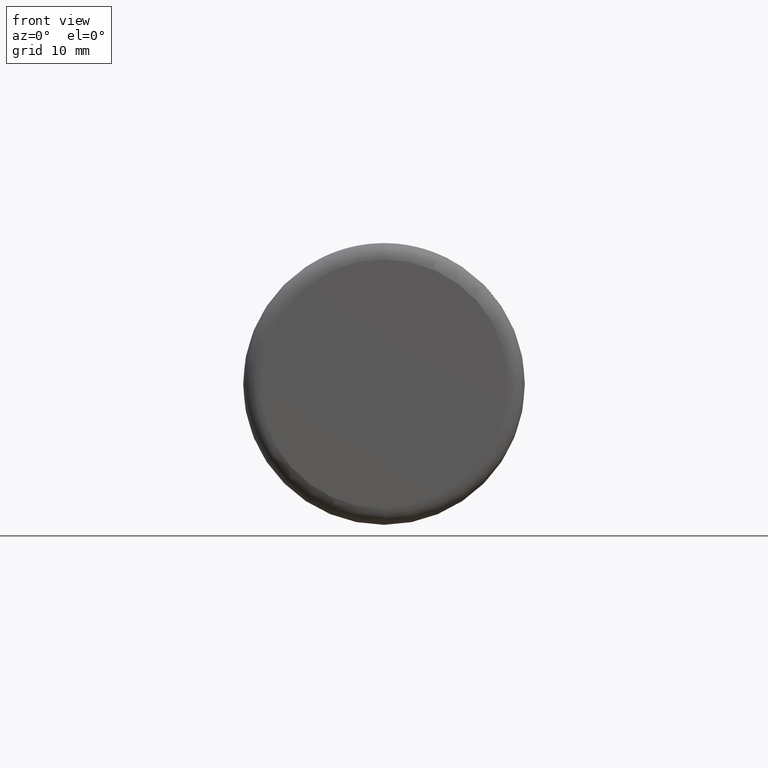
[diagram: clean part render]
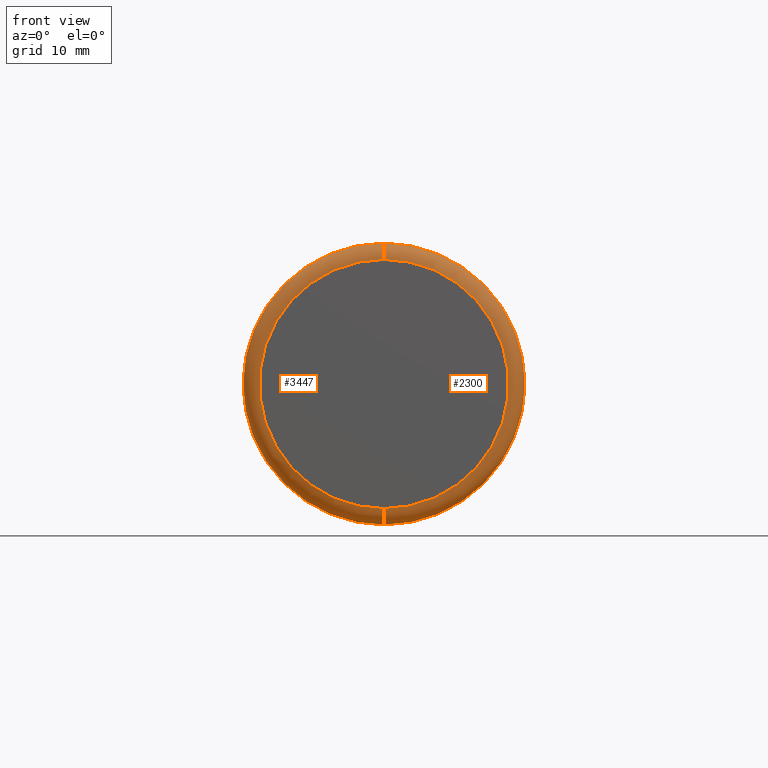
[diagram: same view with one multi-face feature highlighted, each face labeled with its STEP entity id]
A machine part, front view. The highlighted faces form ONE feature: a constant-radius fillet chain: 2 tangent blend faces with common blend radius 2.3616 mm. The faces share edges in the B-rep.
Their STEP definitions:
[1] entity #2300 (Torus):
#214 = AXIS2_PLACEMENT_3D ( 'NONE', #1311, #4252, #2015 ) ;
#237 = ORIENTED_EDGE ( 'NONE', *, *, #2644, .F. ) ;
#352 = VERTEX_POINT ( 'NONE', #1563 ) ;
#516 = ORIENTED_EDGE ( 'NONE', *, *, #3492, .F. ) ;
#536 = CARTESIAN_POINT ( 'NONE',  ( 2.221313350165435200E-015, 2.361600000000005500, -18.13839999999999700 ) ) ;
#820 = CIRCLE ( 'NONE', #3004, 2.361599999999998400 ) ;
#1001 = CIRCLE ( 'NONE', #214, 2.361599999999998400 ) ;
#1093 = DIRECTION ( 'NONE',  ( 0.0000000000000000000, 0.0000000000000000000, 1.000000000000000000 ) ) ;
#1240 = DIRECTION ( 'NONE',  ( 0.0000000000000000000, 0.0000000000000000000, 1.000000000000000000 ) ) ;
#1311 = CARTESIAN_POINT ( 'NONE',  ( 0.0000000000000000000, 2.361600000000005500, 18.13839999999999700 ) ) ;
#1554 = EDGE_CURVE ( 'NONE', #3426, #4584, #3434, .T. ) ;
#1563 = CARTESIAN_POINT ( 'NONE',  ( 2.365919644208754400E-015, 0.0000000000000000000, -18.13839999999999700 ) ) ;
#1633 = DIRECTION ( 'NONE',  ( -0.0000000000000000000, -1.000000000000000000, -0.0000000000000000000 ) ) ;
#1655 = VERTEX_POINT ( 'NONE', #4749 ) ;
#1981 = CARTESIAN_POINT ( 'NONE',  ( 0.0000000000000000000, 2.361600000000005500, 20.49999999999999600 ) ) ;
#2013 = FACE_OUTER_BOUND ( 'NONE', #2918, .T. ) ;
#2015 = DIRECTION ( 'NONE',  ( 0.0000000000000000000, 0.0000000000000000000, 1.000000000000000000 ) ) ;
#2052 = DIRECTION ( 'NONE',  ( 1.224646799147353700E-016, 0.0000000000000000000, -1.000000000000000000 ) ) ;
#2169 = AXIS2_PLACEMENT_3D ( 'NONE', #3093, #1633, #3497 ) ;
#2300 = ADVANCED_FACE ( 'NONE', ( #2013 ), #4199, .T. ) ;
#2644 = EDGE_CURVE ( 'NONE', #352, #1655, #4673, .T. ) ;
#2649 = CARTESIAN_POINT ( 'NONE',  ( 0.0000000000000000000, 2.361600000000005500, 0.0000000000000000000 ) ) ;
#2712 = AXIS2_PLACEMENT_3D ( 'NONE', #4564, #3476, #1240 ) ;
#2918 = EDGE_LOOP ( 'NONE', ( #237, #3182, #4691, #516 ) ) ;
#3004 = AXIS2_PLACEMENT_3D ( 'NONE', #536, #3522, #2052 ) ;
#3093 = CARTESIAN_POINT ( 'NONE',  ( 0.0000000000000000000, 0.0000000000000000000, 0.0000000000000000000 ) ) ;
#3182 = ORIENTED_EDGE ( 'NONE', *, *, #3824, .T. ) ;
#3338 = DIRECTION ( 'NONE',  ( 0.0000000000000000000, 1.000000000000000000, 0.0000000000000000000 ) ) ;
#3426 = VERTEX_POINT ( 'NONE', #1981 ) ;
#3434 = CIRCLE ( 'NONE', #2712, 20.50000000000000000 ) ;
#3476 = DIRECTION ( 'NONE',  ( 0.0000000000000000000, 1.000000000000000000, 0.0000000000000000000 ) ) ;
#3491 = AXIS2_PLACEMENT_3D ( 'NONE', #2649, #3338, #1093 ) ;
#3492 = EDGE_CURVE ( 'NONE', #1655, #3426, #1001, .T. ) ;
#3497 = DIRECTION ( 'NONE',  ( 0.0000000000000000000, 0.0000000000000000000, 1.000000000000000000 ) ) ;
#3522 = DIRECTION ( 'NONE',  ( 1.000000000000000000, -0.0000000000000000000, 1.224646799147353200E-016 ) ) ;
#3560 = CARTESIAN_POINT ( 'NONE',  ( 2.510525938252074100E-015, 2.361600000000005500, -20.49999999999999600 ) ) ;
#3824 = EDGE_CURVE ( 'NONE', #352, #4584, #820, .T. ) ;
#4199 = TOROIDAL_SURFACE ( 'NONE', #3491, 18.13839999999999700, 2.361600000000000100 ) ;
#4252 = DIRECTION ( 'NONE',  ( -1.000000000000000000, 0.0000000000000000000, 0.0000000000000000000 ) ) ;
#4564 = CARTESIAN_POINT ( 'NONE',  ( 0.0000000000000000000, 2.361600000000005500, 0.0000000000000000000 ) ) ;
#4584 = VERTEX_POINT ( 'NONE', #3560 ) ;
#4673 = CIRCLE ( 'NONE', #2169, 18.13839999999999700 ) ;
#4691 = ORIENTED_EDGE ( 'NONE', *, *, #1554, .F. ) ;
#4749 = CARTESIAN_POINT ( 'NONE',  ( 0.0000000000000000000, 0.0000000000000000000, 18.13839999999999700 ) ) ;
[2] entity #3447 (Torus):
#116 = DIRECTION ( 'NONE',  ( 0.0000000000000000000, 0.0000000000000000000, 1.000000000000000000 ) ) ;
#214 = AXIS2_PLACEMENT_3D ( 'NONE', #1311, #4252, #2015 ) ;
#352 = VERTEX_POINT ( 'NONE', #1563 ) ;
#457 = ORIENTED_EDGE ( 'NONE', *, *, #2874, .F. ) ;
#536 = CARTESIAN_POINT ( 'NONE',  ( 2.221313350165435200E-015, 2.361600000000005500, -18.13839999999999700 ) ) ;
#563 = AXIS2_PLACEMENT_3D ( 'NONE', #1802, #1814, #2207 ) ;
#820 = CIRCLE ( 'NONE', #3004, 2.361599999999998400 ) ;
#1001 = CIRCLE ( 'NONE', #214, 2.361599999999998400 ) ;
#1006 = TOROIDAL_SURFACE ( 'NONE', #3190, 18.13839999999999700, 2.361600000000000100 ) ;
#1104 = ORIENTED_EDGE ( 'NONE', *, *, #3492, .T. ) ;
#1311 = CARTESIAN_POINT ( 'NONE',  ( 0.0000000000000000000, 2.361600000000005500, 18.13839999999999700 ) ) ;
#1563 = CARTESIAN_POINT ( 'NONE',  ( 2.365919644208754400E-015, 0.0000000000000000000, -18.13839999999999700 ) ) ;
#1655 = VERTEX_POINT ( 'NONE', #4749 ) ;
#1797 = EDGE_LOOP ( 'NONE', ( #3079, #3318, #1104, #457 ) ) ;
#1802 = CARTESIAN_POINT ( 'NONE',  ( 0.0000000000000000000, 2.361600000000005500, 0.0000000000000000000 ) ) ;
#1814 = DIRECTION ( 'NONE',  ( 0.0000000000000000000, 1.000000000000000000, 0.0000000000000000000 ) ) ;
#1981 = CARTESIAN_POINT ( 'NONE',  ( 0.0000000000000000000, 2.361600000000005500, 20.49999999999999600 ) ) ;
#2015 = DIRECTION ( 'NONE',  ( 0.0000000000000000000, 0.0000000000000000000, 1.000000000000000000 ) ) ;
#2052 = DIRECTION ( 'NONE',  ( 1.224646799147353700E-016, 0.0000000000000000000, -1.000000000000000000 ) ) ;
#2207 = DIRECTION ( 'NONE',  ( 0.0000000000000000000, 0.0000000000000000000, 1.000000000000000000 ) ) ;
#2400 = DIRECTION ( 'NONE',  ( -0.0000000000000000000, -1.000000000000000000, -0.0000000000000000000 ) ) ;
#2562 = AXIS2_PLACEMENT_3D ( 'NONE', #4603, #2400, #3160 ) ;
#2815 = FACE_OUTER_BOUND ( 'NONE', #1797, .T. ) ;
#2874 = EDGE_CURVE ( 'NONE', #4584, #3426, #4380, .T. ) ;
#3004 = AXIS2_PLACEMENT_3D ( 'NONE', #536, #3522, #2052 ) ;
#3079 = ORIENTED_EDGE ( 'NONE', *, *, #3824, .F. ) ;
#3160 = DIRECTION ( 'NONE',  ( 0.0000000000000000000, 0.0000000000000000000, 1.000000000000000000 ) ) ;
#3190 = AXIS2_PLACEMENT_3D ( 'NONE', #3424, #3789, #116 ) ;
#3318 = ORIENTED_EDGE ( 'NONE', *, *, #4567, .F. ) ;
#3424 = CARTESIAN_POINT ( 'NONE',  ( 0.0000000000000000000, 2.361600000000005500, 0.0000000000000000000 ) ) ;
#3426 = VERTEX_POINT ( 'NONE', #1981 ) ;
#3447 = ADVANCED_FACE ( 'NONE', ( #2815 ), #1006, .T. ) ;
#3492 = EDGE_CURVE ( 'NONE', #1655, #3426, #1001, .T. ) ;
#3522 = DIRECTION ( 'NONE',  ( 1.000000000000000000, -0.0000000000000000000, 1.224646799147353200E-016 ) ) ;
#3560 = CARTESIAN_POINT ( 'NONE',  ( 2.510525938252074100E-015, 2.361600000000005500, -20.49999999999999600 ) ) ;
#3789 = DIRECTION ( 'NONE',  ( 0.0000000000000000000, 1.000000000000000000, 0.0000000000000000000 ) ) ;
#3824 = EDGE_CURVE ( 'NONE', #352, #4584, #820, .T. ) ;
#4252 = DIRECTION ( 'NONE',  ( -1.000000000000000000, 0.0000000000000000000, 0.0000000000000000000 ) ) ;
#4380 = CIRCLE ( 'NONE', #563, 20.50000000000000000 ) ;
#4567 = EDGE_CURVE ( 'NONE', #1655, #352, #4611, .T. ) ;
#4584 = VERTEX_POINT ( 'NONE', #3560 ) ;
#4603 = CARTESIAN_POINT ( 'NONE',  ( 0.0000000000000000000, 0.0000000000000000000, 0.0000000000000000000 ) ) ;
#4611 = CIRCLE ( 'NONE', #2562, 18.13839999999999700 ) ;
#4749 = CARTESIAN_POINT ( 'NONE',  ( 0.0000000000000000000, 0.0000000000000000000, 18.13839999999999700 ) ) ;